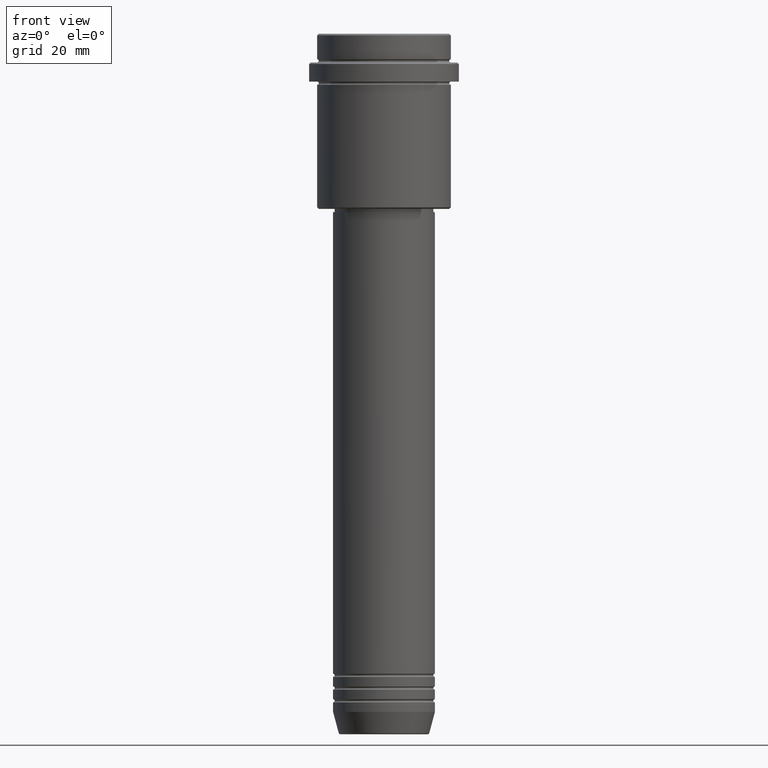
[diagram: clean part render]
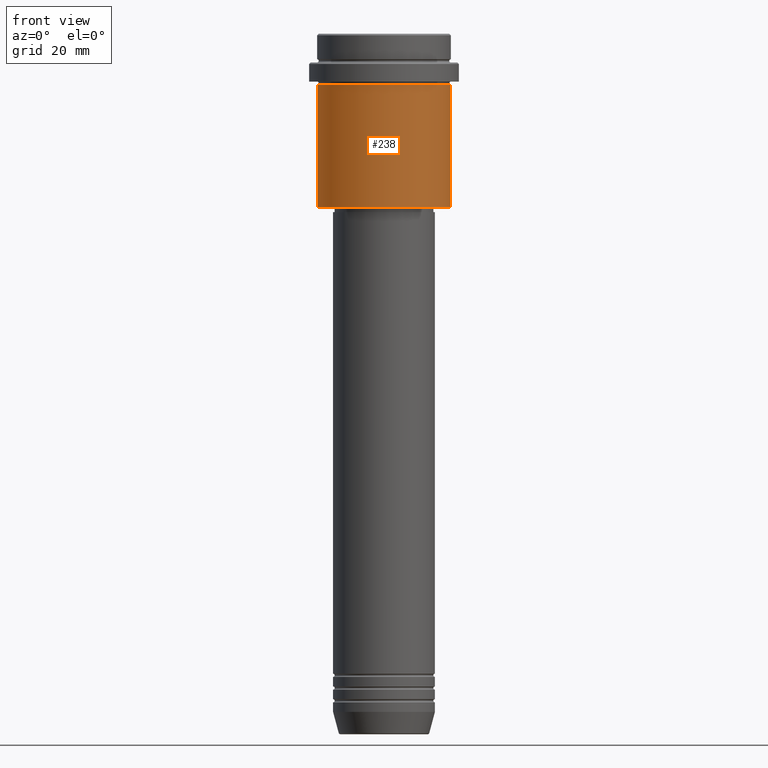
[diagram: same view with one face highlighted and labeled with its STEP entity id]
A machine part, front view. The second image highlights one B-rep face of the part: STEP entity #238.
In plain terms, the highlighted cylindrical surface (partial cylindrical patch) has radius 21 mm, axis along (-0, -0, 1).
Its self-contained STEP definition (entity closure, byte-faithful):
#97 = CARTESIAN_POINT ( 'NONE',  ( -21.00000000000000000, 2.571758278209441661E-15, -16.00000000000000355 ) ) ;
#166 = DIRECTION ( 'NONE',  ( 1.000000000000000000, 0.000000000000000000, 0.000000000000000000 ) ) ;
#222 = CARTESIAN_POINT ( 'NONE',  ( 21.00000000000000000, 0.000000000000000000, 0.000000000000000000 ) ) ;
#234 = ORIENTED_EDGE ( 'NONE', *, *, #1351, .F. ) ;
#238 = ADVANCED_FACE ( 'NONE', ( #896 ), #1338, .T. ) ;
#256 = DIRECTION ( 'NONE',  ( -1.000000000000000000, 0.000000000000000000, 0.000000000000000000 ) ) ;
#322 = ORIENTED_EDGE ( 'NONE', *, *, #1095, .T. ) ;
#395 = CARTESIAN_POINT ( 'NONE',  ( 0.000000000000000000, 0.000000000000000000, -54.49999999999999289 ) ) ;
#502 = CARTESIAN_POINT ( 'NONE',  ( 0.000000000000000000, 0.000000000000000000, -16.00000000000000355 ) ) ;
#519 = CARTESIAN_POINT ( 'NONE',  ( -21.00000000000000000, 2.571758278209441661E-15, -54.49999999999999289 ) ) ;
#531 = EDGE_CURVE ( 'NONE', #1177, #1075, #763, .T. ) ;
#583 = CARTESIAN_POINT ( 'NONE',  ( -21.00000000000000000, 2.571758278209441661E-15, 0.000000000000000000 ) ) ;
#657 = DIRECTION ( 'NONE',  ( -0.000000000000000000, -0.000000000000000000, 1.000000000000000000 ) ) ;
#707 = AXIS2_PLACEMENT_3D ( 'NONE', #395, #821, #256 ) ;
#726 = ORIENTED_EDGE ( 'NONE', *, *, #1085, .F. ) ;
#763 = LINE ( 'NONE', #222, #1344 ) ;
#788 = CARTESIAN_POINT ( 'NONE',  ( 0.000000000000000000, 0.000000000000000000, 0.000000000000000000 ) ) ;
#821 = DIRECTION ( 'NONE',  ( -0.000000000000000000, -0.000000000000000000, 1.000000000000000000 ) ) ;
#875 = EDGE_LOOP ( 'NONE', ( #726, #322, #1099, #234 ) ) ;
#896 = FACE_OUTER_BOUND ( 'NONE', #875, .T. ) ;
#903 = LINE ( 'NONE', #583, #1118 ) ;
#930 = CIRCLE ( 'NONE', #1121, 21.00000000000000000 ) ;
#1001 = CIRCLE ( 'NONE', #707, 21.00000000000000000 ) ;
#1030 = DIRECTION ( 'NONE',  ( -0.000000000000000000, -0.000000000000000000, 1.000000000000000000 ) ) ;
#1042 = DIRECTION ( 'NONE',  ( 1.000000000000000000, 0.000000000000000000, 0.000000000000000000 ) ) ;
#1075 = VERTEX_POINT ( 'NONE', #1378 ) ;
#1085 = EDGE_CURVE ( 'NONE', #1127, #1193, #903, .T. ) ;
#1095 = EDGE_CURVE ( 'NONE', #1127, #1177, #1001, .T. ) ;
#1099 = ORIENTED_EDGE ( 'NONE', *, *, #531, .T. ) ;
#1118 = VECTOR ( 'NONE', #1030, 1000.000000000000000 ) ;
#1121 = AXIS2_PLACEMENT_3D ( 'NONE', #502, #1147, #166 ) ;
#1127 = VERTEX_POINT ( 'NONE', #519 ) ;
#1147 = DIRECTION ( 'NONE',  ( -0.000000000000000000, -0.000000000000000000, 1.000000000000000000 ) ) ;
#1164 = CARTESIAN_POINT ( 'NONE',  ( 21.00000000000000000, 0.000000000000000000, -54.49999999999999289 ) ) ;
#1170 = DIRECTION ( 'NONE',  ( -0.000000000000000000, -0.000000000000000000, 1.000000000000000000 ) ) ;
#1177 = VERTEX_POINT ( 'NONE', #1164 ) ;
#1193 = VERTEX_POINT ( 'NONE', #97 ) ;
#1208 = AXIS2_PLACEMENT_3D ( 'NONE', #788, #1170, #1042 ) ;
#1338 = CYLINDRICAL_SURFACE ( 'NONE', #1208, 21.00000000000000000 ) ;
#1344 = VECTOR ( 'NONE', #657, 1000.000000000000000 ) ;
#1351 = EDGE_CURVE ( 'NONE', #1193, #1075, #930, .T. ) ;
#1378 = CARTESIAN_POINT ( 'NONE',  ( 21.00000000000000000, 0.000000000000000000, -16.00000000000000355 ) ) ;